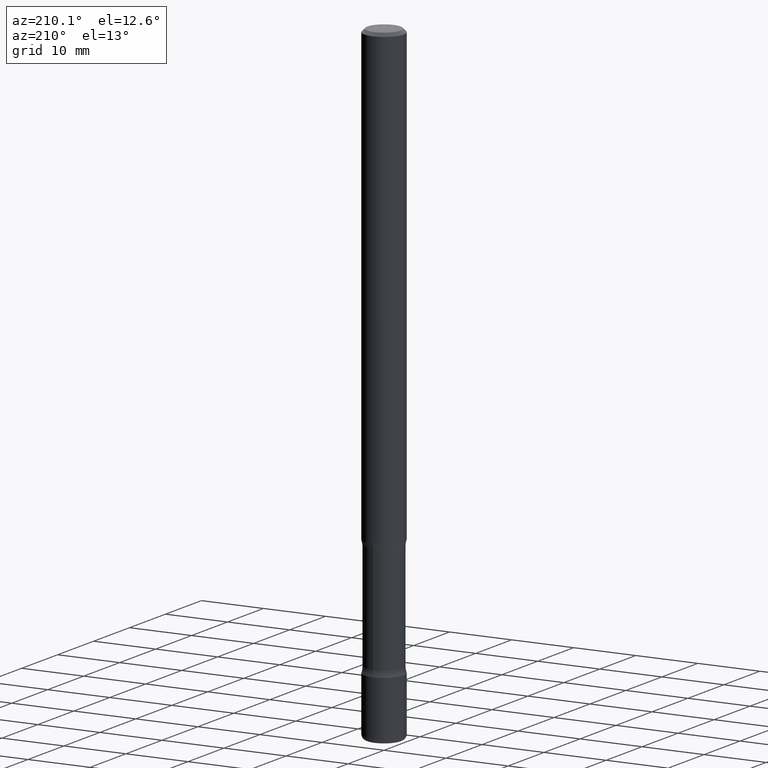
[diagram: clean part render]
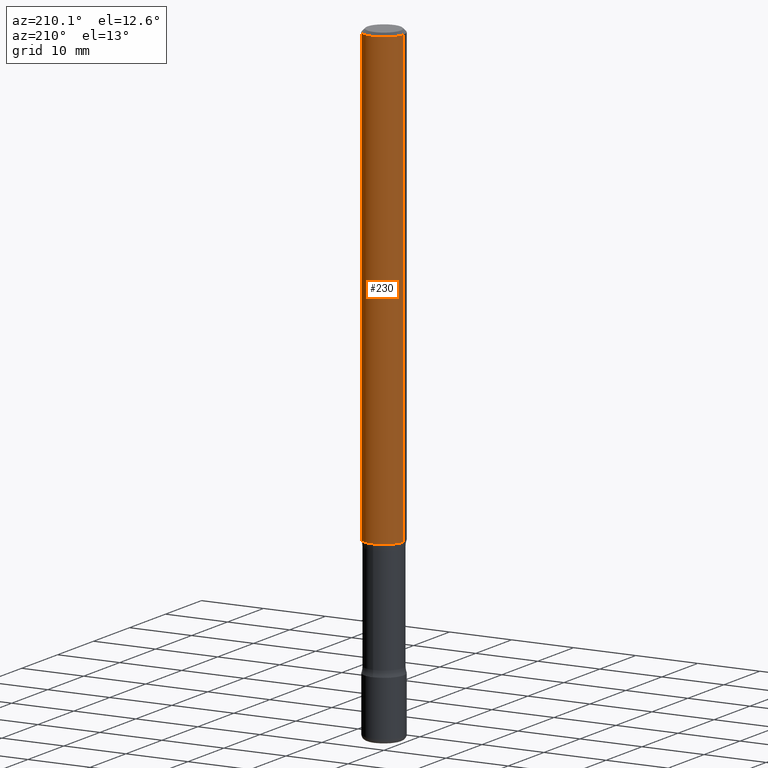
[diagram: same view with one face highlighted and labeled with its STEP entity id]
A machine part, auxiliary view. The second image highlights one B-rep face of the part: STEP entity #230.
In plain terms, the highlighted cylindrical surface (edge-blend (fillet) strip) has radius 3.175 mm, axis along (-0, 0, 1).
Its self-contained STEP definition (entity closure, byte-faithful):
#3 = DIRECTION ( 'NONE',  ( -2.445468806185136597E-29, 3.491481338843145583E-15, 1.000000000000000000 ) ) ;
#10 = ORIENTED_EDGE ( 'NONE', *, *, #407, .T. ) ;
#16 = VERTEX_POINT ( 'NONE', #452 ) ;
#20 = ORIENTED_EDGE ( 'NONE', *, *, #209, .F. ) ;
#80 = DIRECTION ( 'NONE',  ( -2.445468806185136597E-29, 3.491481338843145583E-15, 1.000000000000000000 ) ) ;
#83 = DIRECTION ( 'NONE',  ( 1.000000000000000000, -6.982962677686266711E-15, 4.876176775795935793E-29 ) ) ;
#91 = CARTESIAN_POINT ( 'NONE',  ( 0.1250000000000006384, -1.091087918388483276E-14, -2.875000000000000000 ) ) ;
#106 = DIRECTION ( 'NONE',  ( -2.445468806185136597E-29, 3.491481338843145583E-15, 1.000000000000000000 ) ) ;
#112 = CARTESIAN_POINT ( 'NONE',  ( -0.1250000000000006384, -4.165740818275317715E-15, -2.875000000000000000 ) ) ;
#115 = VERTEX_POINT ( 'NONE', #91 ) ;
#117 = DIRECTION ( 'NONE',  ( -2.445468806185136877E-29, 3.491481338843145188E-15, 1.000000000000000000 ) ) ;
#173 = CIRCLE ( 'NONE', #498, 0.1250000000000006384 ) ;
#199 = AXIS2_PLACEMENT_3D ( 'NONE', #558, #80, #513 ) ;
#209 = EDGE_CURVE ( 'NONE', #16, #238, #447, .T. ) ;
#230 = ADVANCED_FACE ( 'NONE', ( #300 ), #298, .T. ) ;
#235 = LINE ( 'NONE', #402, #479 ) ;
#238 = VERTEX_POINT ( 'NONE', #423 ) ;
#241 = CARTESIAN_POINT ( 'NONE',  ( 7.030722817782267716E-29, -1.003800884917404311E-14, -2.875000000000000000 ) ) ;
#261 = EDGE_LOOP ( 'NONE', ( #10, #287, #20, #524 ) ) ;
#287 = ORIENTED_EDGE ( 'NONE', *, *, #458, .T. ) ;
#298 = CYLINDRICAL_SURFACE ( 'NONE', #424, 0.1250000000000004718 ) ;
#300 = FACE_OUTER_BOUND ( 'NONE', #261, .T. ) ;
#320 = VERTEX_POINT ( 'NONE', #112 ) ;
#335 = EDGE_CURVE ( 'NONE', #115, #16, #486, .T. ) ;
#355 = CARTESIAN_POINT ( 'NONE',  ( 0.000000000000000000, 0.000000000000000000, 0.000000000000000000 ) ) ;
#360 = CARTESIAN_POINT ( 'NONE',  ( 0.1250000000000004718, -8.728703347107865929E-16, 6.095220969744942862E-30 ) ) ;
#365 = DIRECTION ( 'NONE',  ( -2.445468806185136877E-29, 3.491481338843145188E-15, 1.000000000000000000 ) ) ;
#402 = CARTESIAN_POINT ( 'NONE',  ( -0.1250000000000004718, 8.881784197001285850E-16, -6.148668862818656049E-30 ) ) ;
#407 = EDGE_CURVE ( 'NONE', #115, #320, #173, .T. ) ;
#423 = CARTESIAN_POINT ( 'NONE',  ( -0.1250000000000003053, 8.030407079339224072E-16, -0.02000000000000000042 ) ) ;
#424 = AXIS2_PLACEMENT_3D ( 'NONE', #355, #3, #83 ) ;
#447 = CIRCLE ( 'NONE', #199, 0.1250000000000003053 ) ;
#452 = CARTESIAN_POINT ( 'NONE',  ( 0.1250000000000003053, -9.273918764983065184E-16, -0.02000000000000000042 ) ) ;
#458 = EDGE_CURVE ( 'NONE', #320, #238, #235, .T. ) ;
#479 = VECTOR ( 'NONE', #117, 39.37007874015748143 ) ;
#480 = DIRECTION ( 'NONE',  ( 1.000000000000000000, -6.982962677686273810E-15, 0.000000000000000000 ) ) ;
#486 = LINE ( 'NONE', #360, #545 ) ;
#498 = AXIS2_PLACEMENT_3D ( 'NONE', #241, #106, #480 ) ;
#513 = DIRECTION ( 'NONE',  ( 1.000000000000000000, -6.982962677686265922E-15, 0.000000000000000000 ) ) ;
#524 = ORIENTED_EDGE ( 'NONE', *, *, #335, .F. ) ;
#545 = VECTOR ( 'NONE', #365, 39.37007874015748143 ) ;
#558 = CARTESIAN_POINT ( 'NONE',  ( 4.890937612370273159E-31, -6.982962677686291609E-17, -0.02000000000000000042 ) ) ;